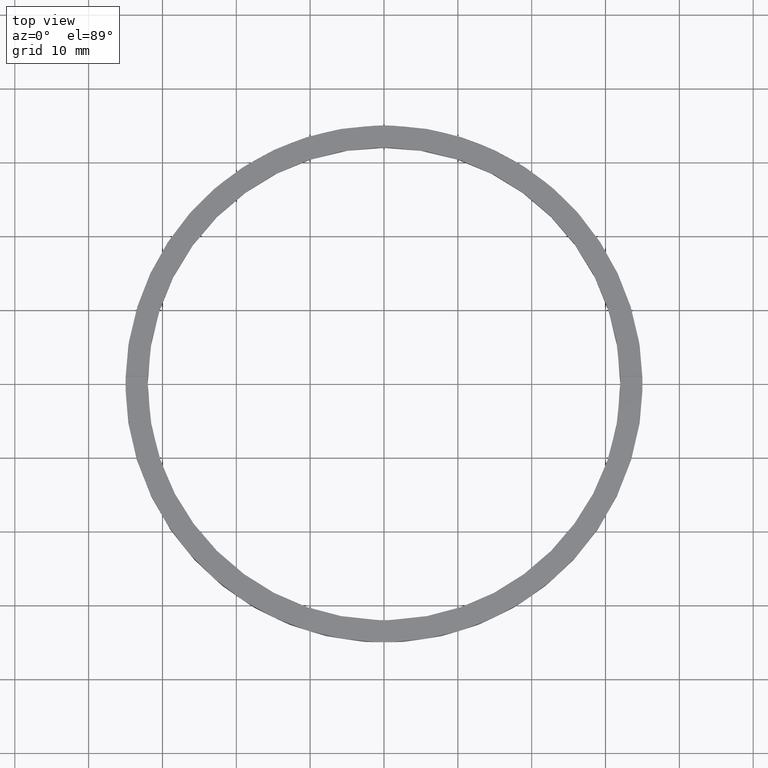
[diagram: clean part render]
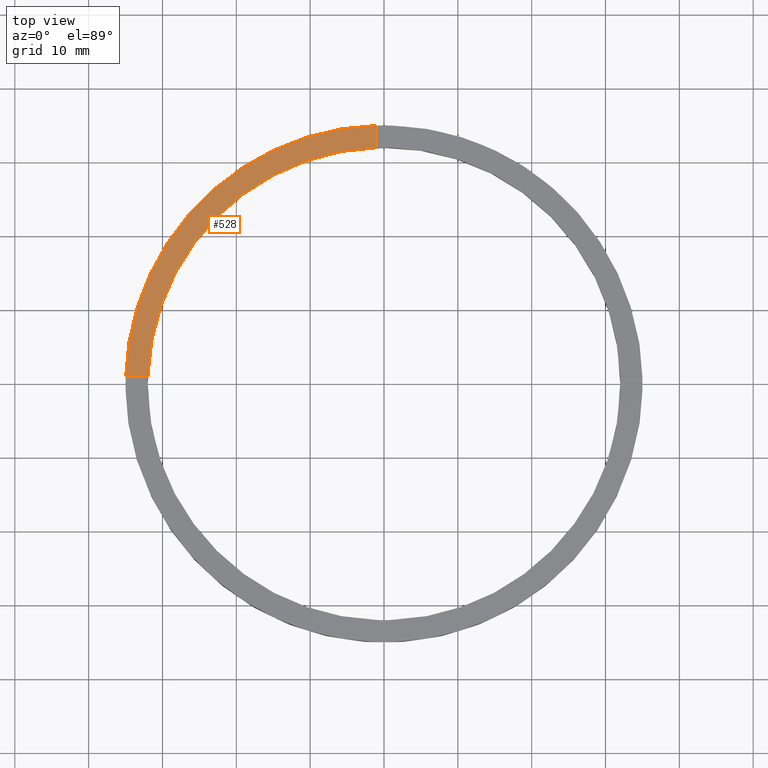
[diagram: same view with one face highlighted and labeled with its STEP entity id]
A machine part, top view. The second image highlights one B-rep face of the part: STEP entity #528.
In plain terms, the highlighted planar face has unit normal (0, 0, 1).
Its self-contained STEP definition (entity closure, byte-faithful):
#2 = CARTESIAN_POINT ( 'NONE',  ( -1.000000000000024869, 34.98571136907180801, 3.500000000000000000 ) ) ;
#3 = CARTESIAN_POINT ( 'NONE',  ( -1.000000000000024869, 31.98437118343894880, 3.500000000000000000 ) ) ;
#14 = CARTESIAN_POINT ( 'NONE',  ( 0.000000000000000000, 0.000000000000000000, 3.500000000000000000 ) ) ;
#36 = CARTESIAN_POINT ( 'NONE',  ( 0.000000000000000000, 0.000000000000000000, 3.500000000000000000 ) ) ;
#40 = CARTESIAN_POINT ( 'NONE',  ( -31.98437118343894880, 0.9999999999999737987, 3.500000000000000000 ) ) ;
#68 = EDGE_LOOP ( 'NONE', ( #592, #381, #132, #636 ) ) ;
#125 = LINE ( 'NONE', #778, #388 ) ;
#132 = ORIENTED_EDGE ( 'NONE', *, *, #276, .F. ) ;
#137 = EDGE_CURVE ( 'NONE', #638, #354, #125, .T. ) ;
#154 = DIRECTION ( 'NONE',  ( 1.000000000000000000, 0.000000000000000000, 0.000000000000000000 ) ) ;
#174 = FACE_OUTER_BOUND ( 'NONE', #68, .T. ) ;
#204 = CIRCLE ( 'NONE', #552, 32.00000000000000000 ) ;
#232 = CIRCLE ( 'NONE', #760, 35.00000000000000711 ) ;
#237 = DIRECTION ( 'NONE',  ( 0.000000000000000000, 0.000000000000000000, 1.000000000000000000 ) ) ;
#241 = AXIS2_PLACEMENT_3D ( 'NONE', #559, #237, #710 ) ;
#242 = CARTESIAN_POINT ( 'NONE',  ( -25.00000000000019540, 0.9999999999999751310, 3.500000000000000000 ) ) ;
#276 = EDGE_CURVE ( 'NONE', #332, #430, #329, .T. ) ;
#312 = DIRECTION ( 'NONE',  ( -1.000000000000000000, -1.951563910473907735E-16, 0.000000000000000000 ) ) ;
#329 = LINE ( 'NONE', #242, #331 ) ;
#331 = VECTOR ( 'NONE', #312, 1000.000000000000000 ) ;
#332 = VERTEX_POINT ( 'NONE', #40 ) ;
#354 = VERTEX_POINT ( 'NONE', #3 ) ;
#381 = ORIENTED_EDGE ( 'NONE', *, *, #783, .T. ) ;
#388 = VECTOR ( 'NONE', #417, 1000.000000000000000 ) ;
#417 = DIRECTION ( 'NONE',  ( -0.000000000000000000, -1.000000000000000000, -0.000000000000000000 ) ) ;
#430 = VERTEX_POINT ( 'NONE', #593 ) ;
#461 = DIRECTION ( 'NONE',  ( 0.000000000000000000, 0.000000000000000000, 1.000000000000000000 ) ) ;
#498 = DIRECTION ( 'NONE',  ( 0.000000000000000000, 0.000000000000000000, 1.000000000000000000 ) ) ;
#520 = PLANE ( 'NONE',  #241 ) ;
#528 = ADVANCED_FACE ( 'NONE', ( #174 ), #520, .T. ) ;
#530 = DIRECTION ( 'NONE',  ( 1.000000000000000000, 0.000000000000000000, 0.000000000000000000 ) ) ;
#547 = EDGE_CURVE ( 'NONE', #354, #332, #204, .T. ) ;
#552 = AXIS2_PLACEMENT_3D ( 'NONE', #14, #461, #154 ) ;
#559 = CARTESIAN_POINT ( 'NONE',  ( 0.000000000000000000, 0.000000000000000000, 3.500000000000000000 ) ) ;
#592 = ORIENTED_EDGE ( 'NONE', *, *, #137, .F. ) ;
#593 = CARTESIAN_POINT ( 'NONE',  ( -34.98571136907180801, 0.9999999999999733546, 3.500000000000000000 ) ) ;
#636 = ORIENTED_EDGE ( 'NONE', *, *, #547, .F. ) ;
#638 = VERTEX_POINT ( 'NONE', #2 ) ;
#710 = DIRECTION ( 'NONE',  ( 1.000000000000000000, 0.000000000000000000, -0.000000000000000000 ) ) ;
#760 = AXIS2_PLACEMENT_3D ( 'NONE', #36, #498, #530 ) ;
#778 = CARTESIAN_POINT ( 'NONE',  ( -1.000000000000024869, 25.00000000000000711, 3.500000000000000000 ) ) ;
#783 = EDGE_CURVE ( 'NONE', #638, #430, #232, .T. ) ;